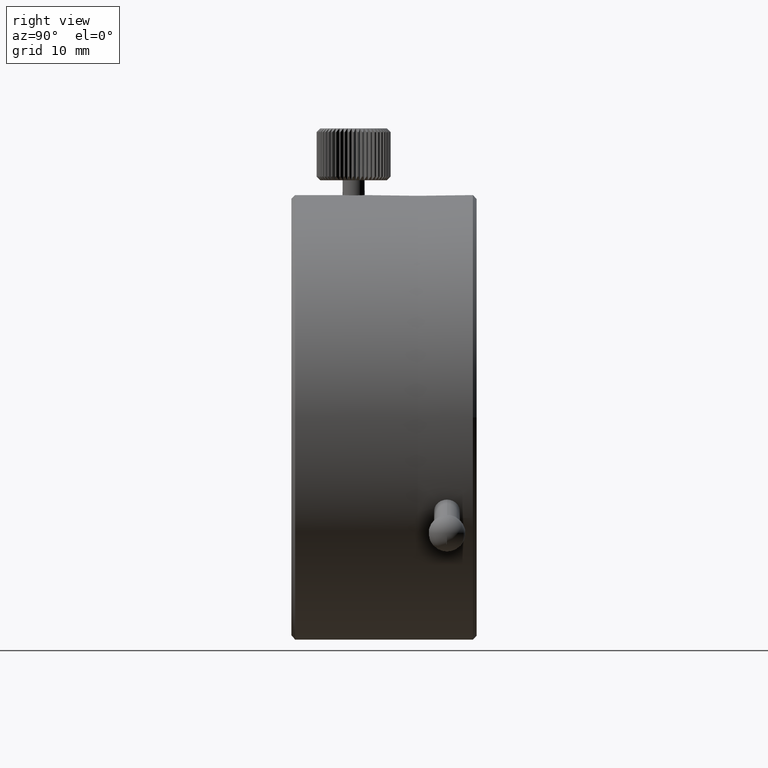
[diagram: clean part render]
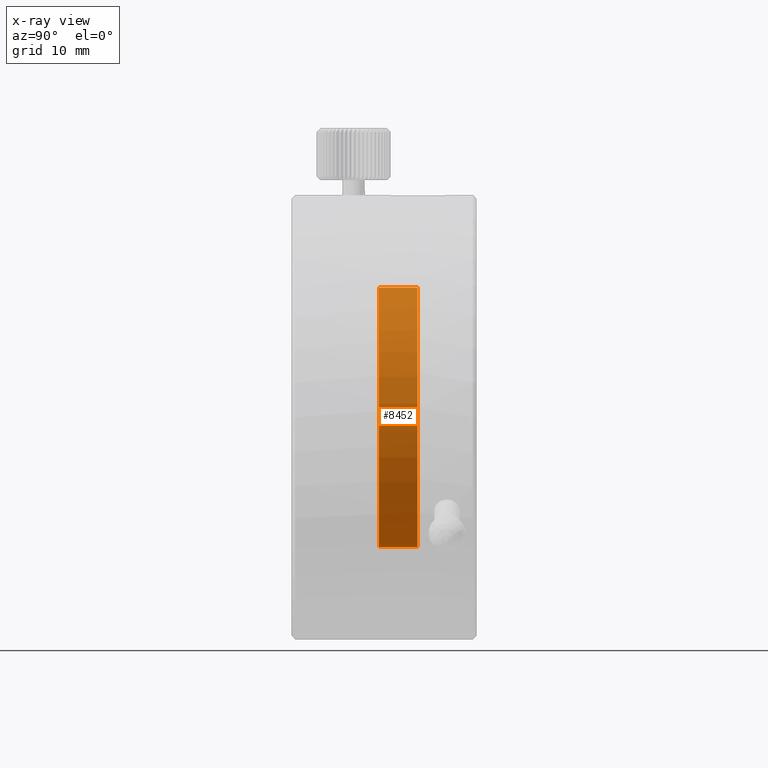
[diagram: x-ray — body ghosted, one internal face saturated and labeled with its STEP entity id]
A machine part, right view, then the same camera in x-ray: the body is ghosted and one INTERNAL B-rep face — a face not visible from any outside direction — is saturated and labeled: STEP entity #8452.
In plain terms, the highlighted cylindrical surface (bore or boss wall) has radius 17.5 mm, axis along (0, -1, 0).
Its self-contained STEP definition (entity closure, byte-faithful):
#714 = FACE_OUTER_BOUND ( 'NONE', #6578, .T. ) ;
#818 = DIRECTION ( 'NONE',  ( 0.000000000000000000, 0.000000000000000000, -1.000000000000000000 ) ) ;
#1230 = ORIENTED_EDGE ( 'NONE', *, *, #2089, .T. ) ;
#1715 = DIRECTION ( 'NONE',  ( 0.000000000000000000, 0.000000000000000000, -1.000000000000000000 ) ) ;
#1795 = EDGE_CURVE ( 'NONE', #2326, #2326, #3233, .T. ) ;
#1805 = DIRECTION ( 'NONE',  ( 0.000000000000000000, -1.000000000000000000, 0.000000000000000000 ) ) ;
#2089 = EDGE_CURVE ( 'NONE', #9251, #9251, #5395, .T. ) ;
#2326 = VERTEX_POINT ( 'NONE', #5263 ) ;
#2460 = CYLINDRICAL_SURFACE ( 'NONE', #4673, 17.50000000000000000 ) ;
#2907 = DIRECTION ( 'NONE',  ( 0.000000000000000000, -1.000000000000000000, 0.000000000000000000 ) ) ;
#3061 = DIRECTION ( 'NONE',  ( -0.000000000000000000, 1.000000000000000000, -0.000000000000000000 ) ) ;
#3233 = CIRCLE ( 'NONE', #4005, 17.50000000000000000 ) ;
#3635 = CARTESIAN_POINT ( 'NONE',  ( 0.000000000000000000, 5.000000000000009770, 0.000000000000000000 ) ) ;
#3647 = CARTESIAN_POINT ( 'NONE',  ( 0.000000000000000000, 11.79999999999999893, 0.000000000000000000 ) ) ;
#4005 = AXIS2_PLACEMENT_3D ( 'NONE', #3647, #3061, #818 ) ;
#4673 = AXIS2_PLACEMENT_3D ( 'NONE', #3635, #2907, #5305 ) ;
#4933 = AXIS2_PLACEMENT_3D ( 'NONE', #9029, #1805, #1715 ) ;
#5244 = EDGE_LOOP ( 'NONE', ( #8561 ) ) ;
#5263 = CARTESIAN_POINT ( 'NONE',  ( 0.000000000000000000, 11.79999999999999893, -17.50000000000000000 ) ) ;
#5305 = DIRECTION ( 'NONE',  ( 0.000000000000000000, 0.000000000000000000, -1.000000000000000000 ) ) ;
#5395 = CIRCLE ( 'NONE', #4933, 17.50000000000000000 ) ;
#5599 = CARTESIAN_POINT ( 'NONE',  ( 0.000000000000000000, 17.00000000000000000, -17.50000000000000000 ) ) ;
#6578 = EDGE_LOOP ( 'NONE', ( #1230 ) ) ;
#8054 = FACE_OUTER_BOUND ( 'NONE', #5244, .T. ) ;
#8452 = ADVANCED_FACE ( 'NONE', ( #8054, #714 ), #2460, .T. ) ;
#8561 = ORIENTED_EDGE ( 'NONE', *, *, #1795, .T. ) ;
#9029 = CARTESIAN_POINT ( 'NONE',  ( 0.000000000000000000, 17.00000000000000000, 0.000000000000000000 ) ) ;
#9251 = VERTEX_POINT ( 'NONE', #5599 ) ;